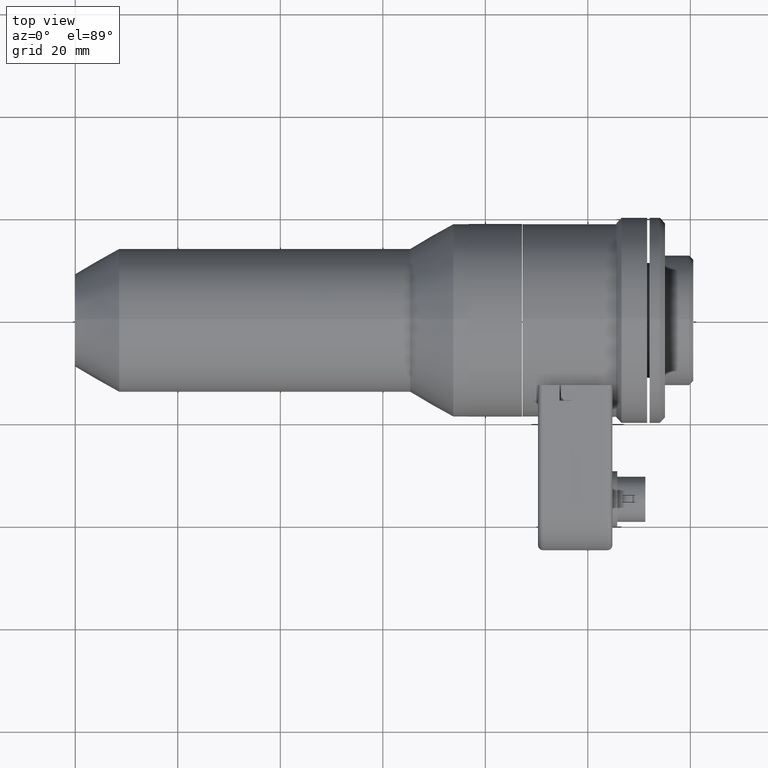
[diagram: clean part render]
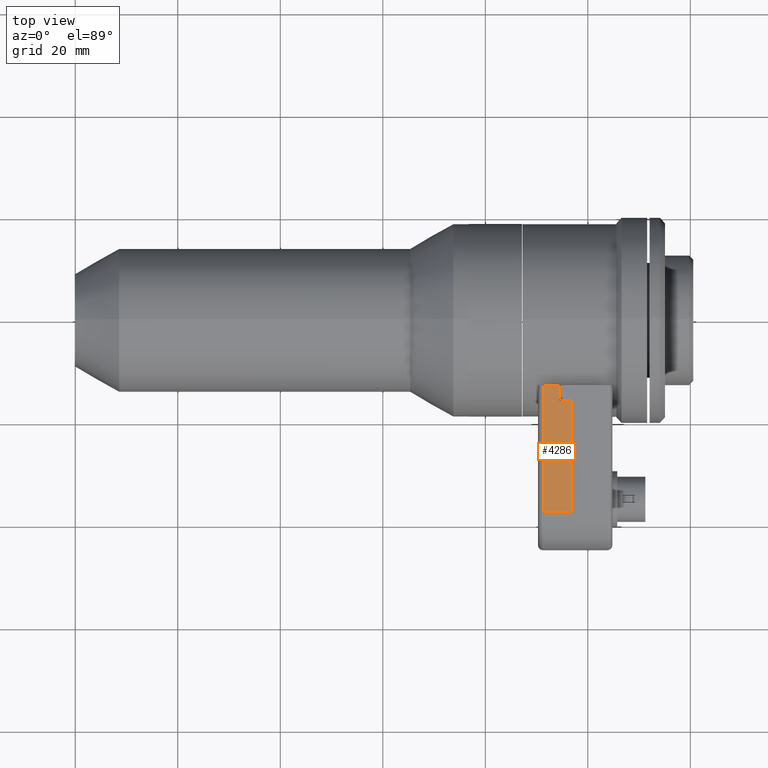
[diagram: same view with one face highlighted and labeled with its STEP entity id]
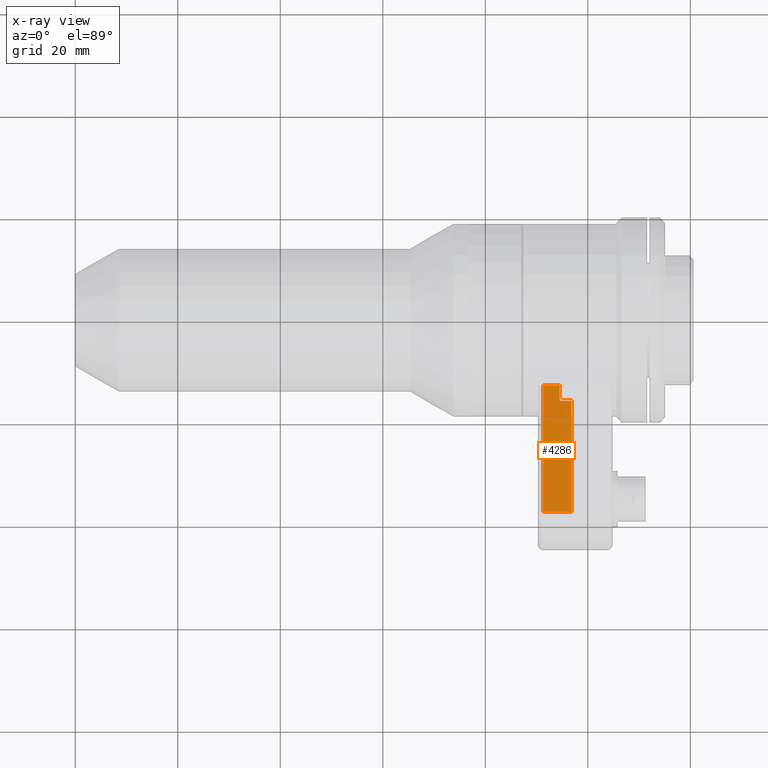
[diagram: x-ray of the same camera — body ghosted, the highlighted face saturated]
A machine part, top view. The second image highlights one B-rep face of the part: STEP entity #4286.
The next image is the same camera in x-ray: the body ghosted, the highlighted face saturated — about 0% of this face is hidden behind the body in this view.
In plain terms, the highlighted planar face has unit normal (0, -0.2145, 0.9767).
Its self-contained STEP definition (entity closure, byte-faithful):
#22 = ORIENTED_EDGE ( 'NONE', *, *, #5903, .T. ) ;
#340 = VECTOR ( 'NONE', #4768, 1000.000000000000000 ) ;
#445 = ORIENTED_EDGE ( 'NONE', *, *, #1093, .T. ) ;
#450 = LINE ( 'NONE', #4507, #2401 ) ;
#495 = DIRECTION ( 'NONE',  ( 1.000000000000000000, -6.066886243083689077E-24, -5.551114434090462289E-17 ) ) ;
#595 = CARTESIAN_POINT ( 'NONE',  ( 94.48674100000000919, -12.91529086529769721, 14.66989078885317177 ) ) ;
#639 = AXIS2_PLACEMENT_3D ( 'NONE', #5624, #1930, #8076 ) ;
#1021 = VERTEX_POINT ( 'NONE', #3463 ) ;
#1093 = EDGE_CURVE ( 'NONE', #6189, #2539, #1916, .T. ) ;
#1399 = LINE ( 'NONE', #5628, #7792 ) ;
#1642 = EDGE_LOOP ( 'NONE', ( #4008, #22, #1783, #445, #5014, #1751 ) ) ;
#1649 = CARTESIAN_POINT ( 'NONE',  ( 96.78674100000000635, -37.45387893723130190, 9.280273080920158790 ) ) ;
#1751 = ORIENTED_EDGE ( 'NONE', *, *, #5419, .T. ) ;
#1783 = ORIENTED_EDGE ( 'NONE', *, *, #7011, .T. ) ;
#1916 = LINE ( 'NONE', #595, #3319 ) ;
#1930 = DIRECTION ( 'NONE',  ( 5.421876083567279056E-17, -0.2145249497116145099, 0.9767185090655492452 ) ) ;
#2224 = CARTESIAN_POINT ( 'NONE',  ( 91.78674100000000635, -15.95474178852476044, 14.00231046719015104 ) ) ;
#2283 = EDGE_CURVE ( 'NONE', #2647, #2888, #6771, .T. ) ;
#2401 = VECTOR ( 'NONE', #7624, 1000.000000000000227 ) ;
#2539 = VERTEX_POINT ( 'NONE', #6473 ) ;
#2647 = VERTEX_POINT ( 'NONE', #4481 ) ;
#2857 = LINE ( 'NONE', #2224, #340 ) ;
#2885 = VERTEX_POINT ( 'NONE', #4853 ) ;
#2888 = VERTEX_POINT ( 'NONE', #1649 ) ;
#3080 = CARTESIAN_POINT ( 'NONE',  ( 94.48674100000000919, -12.91529086529769721, 14.66989078885317177 ) ) ;
#3319 = VECTOR ( 'NONE', #7063, 1000.000000000000000 ) ;
#3365 = LINE ( 'NONE', #4819, #6432 ) ;
#3463 = CARTESIAN_POINT ( 'NONE',  ( 91.28674100000000635, -37.45387893723130190, 9.280273080920158790 ) ) ;
#3677 = FACE_OUTER_BOUND ( 'NONE', #1642, .T. ) ;
#4008 = ORIENTED_EDGE ( 'NONE', *, *, #2283, .F. ) ;
#4010 = EDGE_CURVE ( 'NONE', #2539, #1021, #1399, .T. ) ;
#4286 = ADVANCED_FACE ( 'NONE', ( #3677 ), #5705, .T. ) ;
#4481 = CARTESIAN_POINT ( 'NONE',  ( 96.78674100000000635, -15.95474178852476044, 14.00231046719015815 ) ) ;
#4507 = CARTESIAN_POINT ( 'NONE',  ( 94.48674100000000919, -15.70526247107675211, 14.05710572041085626 ) ) ;
#4768 = DIRECTION ( 'NONE',  ( -1.000000000000000000, 6.066886243083689077E-24, 5.551114434090462289E-17 ) ) ;
#4819 = CARTESIAN_POINT ( 'NONE',  ( 91.78674100000000635, -37.45387893723130190, 9.280273080920158790 ) ) ;
#4853 = CARTESIAN_POINT ( 'NONE',  ( 94.48674100000000919, -15.95474178852476044, 14.00231046719015104 ) ) ;
#5014 = ORIENTED_EDGE ( 'NONE', *, *, #4010, .T. ) ;
#5419 = EDGE_CURVE ( 'NONE', #1021, #2888, #3365, .T. ) ;
#5624 = CARTESIAN_POINT ( 'NONE',  ( 91.78674100000000635, -15.70526247107675211, 14.05710572041085626 ) ) ;
#5628 = CARTESIAN_POINT ( 'NONE',  ( 91.28674100000000635, -15.70526247107675211, 14.05710572041085626 ) ) ;
#5705 = PLANE ( 'NONE',  #639 ) ;
#5903 = EDGE_CURVE ( 'NONE', #2647, #2885, #2857, .T. ) ;
#6023 = CARTESIAN_POINT ( 'NONE',  ( 96.78674100000000635, -15.70526247107675211, 14.05710572041085626 ) ) ;
#6189 = VERTEX_POINT ( 'NONE', #3080 ) ;
#6432 = VECTOR ( 'NONE', #495, 1000.000000000000000 ) ;
#6473 = CARTESIAN_POINT ( 'NONE',  ( 91.28674100000000635, -12.91529086529769721, 14.66989078885314690 ) ) ;
#6695 = VECTOR ( 'NONE', #7275, 1000.000000000000114 ) ;
#6771 = LINE ( 'NONE', #6023, #6695 ) ;
#7011 = EDGE_CURVE ( 'NONE', #2885, #6189, #450, .T. ) ;
#7063 = DIRECTION ( 'NONE',  ( -1.000000000000000000, 6.066886243083689812E-24, 5.551114434090462905E-17 ) ) ;
#7275 = DIRECTION ( 'NONE',  ( -1.190853137380692119E-17, -0.9767185090655491342, -0.2145249497116144821 ) ) ;
#7624 = DIRECTION ( 'NONE',  ( 1.190853137380684724E-17, 0.9767185090655490232, 0.2145249497116149262 ) ) ;
#7792 = VECTOR ( 'NONE', #8167, 1000.000000000000114 ) ;
#8076 = DIRECTION ( 'NONE',  ( 1.190853137380692119E-17, 0.9767185090655491342, 0.2145249497116144821 ) ) ;
#8167 = DIRECTION ( 'NONE',  ( -1.190853137380692119E-17, -0.9767185090655491342, -0.2145249497116144821 ) ) ;